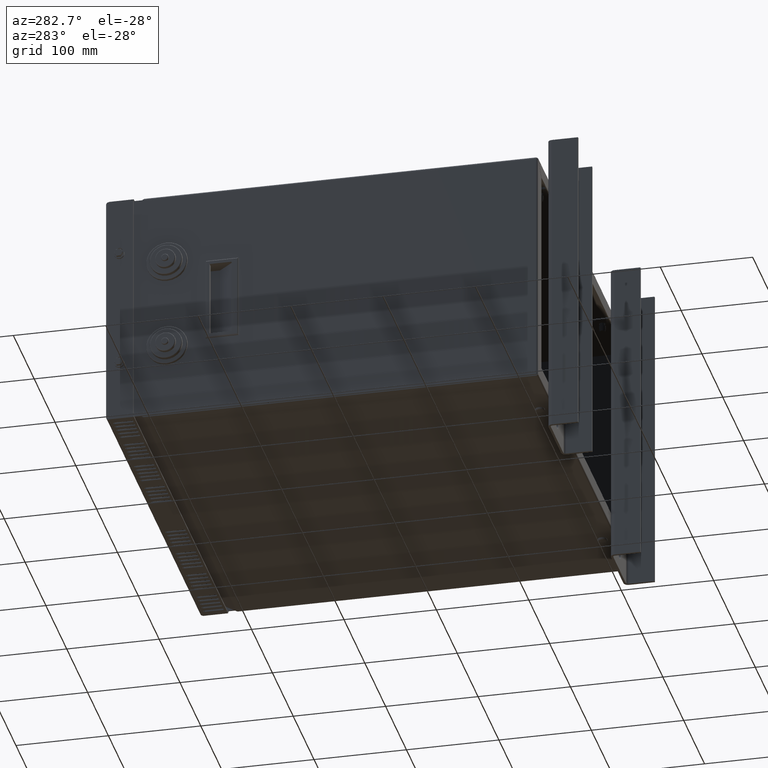
[diagram: clean part render]
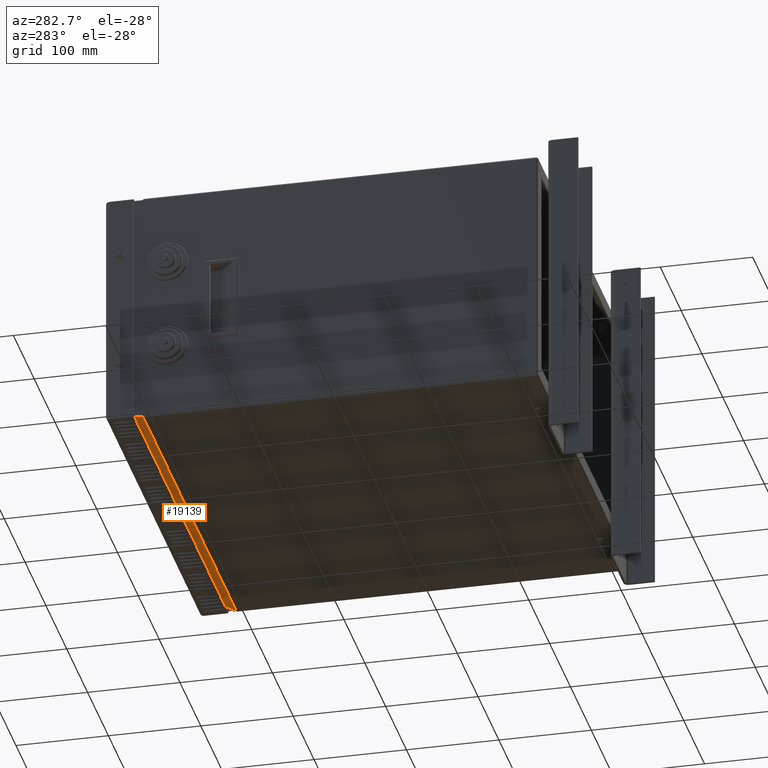
[diagram: same view with one face highlighted and labeled with its STEP entity id]
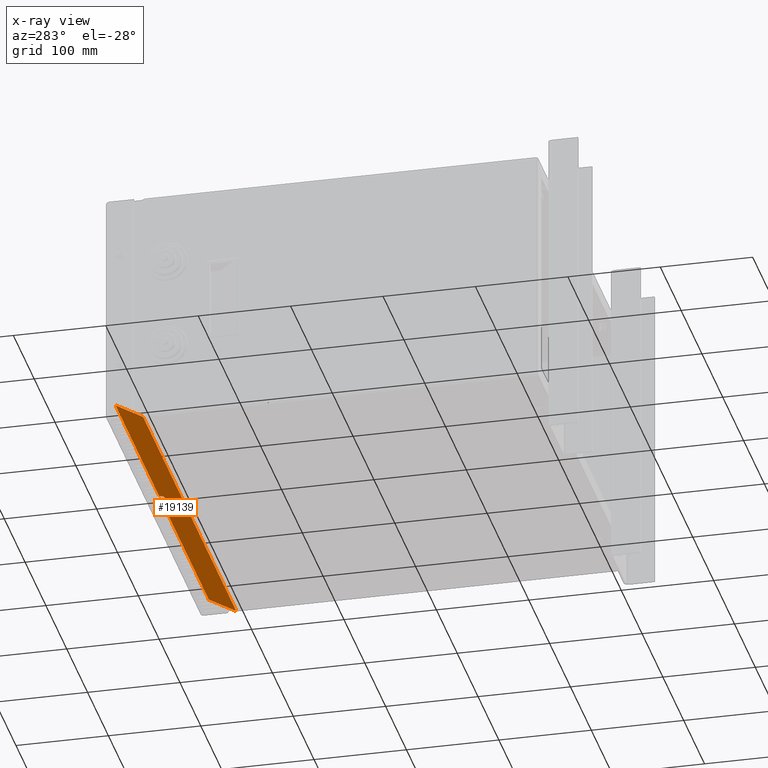
[diagram: x-ray of the same camera — body ghosted, the highlighted face saturated]
A machine part, auxiliary view. The second image highlights one B-rep face of the part: STEP entity #19139.
The next image is the same camera in x-ray: the body ghosted, the highlighted face saturated — about 0% of this face is hidden behind the body in this view.
In plain terms, the highlighted planar face has unit normal (0, 0.5, -0.866).
Its self-contained STEP definition (entity closure, byte-faithful):
#900=PLANE('',#20378);
#1667=LINE('',#28429,#3385);
#1671=LINE('',#28438,#3389);
#1674=LINE('',#28442,#3392);
#1677=LINE('',#28450,#3395);
#1681=LINE('',#28459,#3399);
#1684=LINE('',#28463,#3402);
#1687=LINE('',#28469,#3405);
#1688=LINE('',#28472,#3406);
#1692=LINE('',#28478,#3410);
#1696=LINE('',#28488,#3414);
#1699=LINE('',#28496,#3417);
#1703=LINE('',#28507,#3421);
#3385=VECTOR('',#22692,10.);
#3389=VECTOR('',#22698,10.);
#3392=VECTOR('',#22703,10.);
#3395=VECTOR('',#22708,10.);
#3399=VECTOR('',#22714,10.);
#3402=VECTOR('',#22719,10.);
#3405=VECTOR('',#22724,10.);
#3406=VECTOR('',#22727,10.);
#3410=VECTOR('',#22733,10.);
#3414=VECTOR('',#22741,10.);
#3417=VECTOR('',#22750,1.728);
#3421=VECTOR('',#22764,10.);
#5491=FACE_OUTER_BOUND('',#6659,.T.);
#6659=EDGE_LOOP('',(#13897,#13898,#13899,#13900,#13901,#13902,#13903,#13904,
#13905,#13906,#13907,#13908));
#9087=VERTEX_POINT('',#28426);
#9088=VERTEX_POINT('',#28428);
#9091=VERTEX_POINT('',#28435);
#9092=VERTEX_POINT('',#28437);
#9095=VERTEX_POINT('',#28447);
#9096=VERTEX_POINT('',#28449);
#9099=VERTEX_POINT('',#28456);
#9100=VERTEX_POINT('',#28458);
#9102=VERTEX_POINT('',#28467);
#9103=VERTEX_POINT('',#28471);
#9107=VERTEX_POINT('',#28486);
#9108=VERTEX_POINT('',#28487);
#10951=EDGE_CURVE('',#9088,#9087,#1667,.T.);
#10955=EDGE_CURVE('',#9092,#9091,#1671,.T.);
#10958=EDGE_CURVE('',#9087,#9092,#1674,.T.);
#10961=EDGE_CURVE('',#9096,#9095,#1677,.T.);
#10965=EDGE_CURVE('',#9100,#9099,#1681,.T.);
#10968=EDGE_CURVE('',#9095,#9100,#1684,.T.);
#10971=EDGE_CURVE('',#9102,#9099,#1687,.T.);
#10972=EDGE_CURVE('',#9088,#9103,#1688,.T.);
#10976=EDGE_CURVE('',#9096,#9091,#1692,.T.);
#10980=EDGE_CURVE('',#9107,#9108,#1696,.T.);
#10985=EDGE_CURVE('',#9103,#9108,#1699,.T.);
#10991=EDGE_CURVE('',#9107,#9102,#1703,.T.);
#13897=ORIENTED_EDGE('',*,*,#10955,.T.);
#13898=ORIENTED_EDGE('',*,*,#10976,.F.);
#13899=ORIENTED_EDGE('',*,*,#10961,.T.);
#13900=ORIENTED_EDGE('',*,*,#10968,.T.);
#13901=ORIENTED_EDGE('',*,*,#10965,.T.);
#13902=ORIENTED_EDGE('',*,*,#10971,.F.);
#13903=ORIENTED_EDGE('',*,*,#10991,.F.);
#13904=ORIENTED_EDGE('',*,*,#10980,.T.);
#13905=ORIENTED_EDGE('',*,*,#10985,.F.);
#13906=ORIENTED_EDGE('',*,*,#10972,.F.);
#13907=ORIENTED_EDGE('',*,*,#10951,.T.);
#13908=ORIENTED_EDGE('',*,*,#10958,.T.);
#19139=ADVANCED_FACE('',(#5491),#900,.T.);
#20378=AXIS2_PLACEMENT_3D('',#28508,#22765,#22766);
#22692=DIRECTION('',(-0.469471562785891,-0.764655045626131,-0.441473796429497));
#22698=DIRECTION('',(0.46947156278589,0.764655045626131,0.441473796429498));
#22703=DIRECTION('',(0.882947592858923,-0.406574299726959,-0.234735781392967));
#22708=DIRECTION('',(0.46947156278589,-0.764655045626131,-0.441473796429498));
#22714=DIRECTION('',(-0.469471562785891,0.764655045626131,0.441473796429497));
#22719=DIRECTION('',(0.882947592858925,0.406574299726954,0.234735781392965));
#22724=DIRECTION('',(-1.,-1.51202440804637E-18,-1.07479099581225E-16));
#22727=DIRECTION('',(-1.,-1.51202440804637E-18,-1.07479099581225E-16));
#22733=DIRECTION('',(-1.,-1.51202440804637E-18,-1.07479099581225E-16));
#22741=DIRECTION('',(-1.,-1.66028686914746E-17,-8.30342708290846E-17));
#22750=DIRECTION('',(5.58956414770572E-17,-0.866025403784419,-0.500000000000035));
#22764=DIRECTION('',(-1.92639654731002E-16,0.866025403784416,0.500000000000039));
#22765=DIRECTION('center_axis',(6.36083535769647E-17,0.500000000000038,
-0.866025403784417));
#22766=DIRECTION('ref_axis',(-1.,-1.53346881945413E-16,-1.61983463691324E-16));
#28426=CARTESIAN_POINT('',(206.013367916067,451.297478076565,-245.971844491865));
#28428=CARTESIAN_POINT('',(209.705392839241,457.310889132455,-242.499999999998));
#28429=CARTESIAN_POINT('',(205.890713885407,451.097704478236,-246.087183832637));
#28435=CARTESIAN_POINT('',(214.801958067342,457.310889132455,-242.499999999998));
#28437=CARTESIAN_POINT('',(209.986632083933,449.467893727793,-247.028155508133));
#28438=CARTESIAN_POINT('',(212.271641044977,453.189617831796,-244.879417094838));
#28442=CARTESIAN_POINT('',(216.62265403066,446.412178985736,-248.792373237027));
#28447=CARTESIAN_POINT('',(240.013367916067,449.467893727793,-247.028155508133));
#28449=CARTESIAN_POINT('',(235.198041932658,457.310889132455,-242.499999999998));
#28450=CARTESIAN_POINT('',(240.136021946728,449.268120129465,-247.143494848905));
#28456=CARTESIAN_POINT('',(240.294607160758,457.310889132455,-242.499999999998));
#28458=CARTESIAN_POINT('',(243.986632083933,451.297478076565,-245.971844491865));
#28459=CARTESIAN_POINT('',(242.263273653006,454.104410006181,-244.351261586704));
#28463=CARTESIAN_POINT('',(233.37734596934,446.412178985736,-248.792373237027));
#28467=CARTESIAN_POINT('',(448.8,457.310889132455,-242.499999999998));
#28469=CARTESIAN_POINT('',(448.8,457.310889132455,-242.499999999998));
#28471=CARTESIAN_POINT('',(1.1999999999999,457.310889132455,-242.499999999998));
#28472=CARTESIAN_POINT('',(448.8,457.310889132455,-242.499999999998));
#28478=CARTESIAN_POINT('',(448.8,457.310889132455,-242.499999999998));
#28486=CARTESIAN_POINT('',(448.8,427.556921938165,-259.678460969082));
#28487=CARTESIAN_POINT('',(1.20000000000005,427.556921938165,-259.678460969082));
#28488=CARTESIAN_POINT('',(225.,427.556921938165,-259.678460969082));
#28496=CARTESIAN_POINT('',(1.20000000000005,422.85555398607,-262.392797021784));
#28507=CARTESIAN_POINT('',(448.8,427.556921938165,-259.678460969082));
#28508=CARTESIAN_POINT('Origin',(225.,442.042124872635,-251.315425155599));